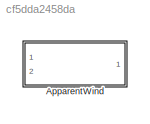
MODEL slx_cf5dda2458da
KIND library
CONFIG AbsTol = auto
CONFIG EnableMultiTasking = off
CONFIG FixedStep = auto
CONFIG MaxStep = auto
CONFIG MinStep = auto
CONFIG RelTol = 1e-3
CONFIG SampleTimeConstraint = Unconstrained
CONFIG Solver = VariableStepAuto
CONFIG SolverName = VariableStepAuto
CONFIG StartTime = 0.0
CONFIG StopTime = 10.0
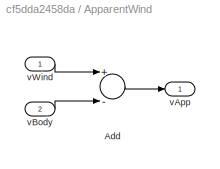
BLOCK [SubSystem] ApparentWind
  Ports = [2, 1]
  RequestExecContextInheritance = off
BLOCK [Sum] ApparentWind/Add
  InputSameDT = off
  Inputs = +-
  OutDataTypeStr = Inherit: Inherit via internal rule
  Ports = [2, 1]
  SaturateOnIntegerOverflow = off
BLOCK [Outport] ApparentWind/vApp
  IconDisplay = Port number
BLOCK [Inport] ApparentWind/vBody
  IconDisplay = Port number
  Port = 2
BLOCK [Inport] ApparentWind/vWind
  IconDisplay = Port number
LINE ApparentWind/Add:1 -> ApparentWind/vApp:1
LINE ApparentWind/vBody:1 -> ApparentWind/Add:2
LINE ApparentWind/vWind:1 -> ApparentWind/Add:1
